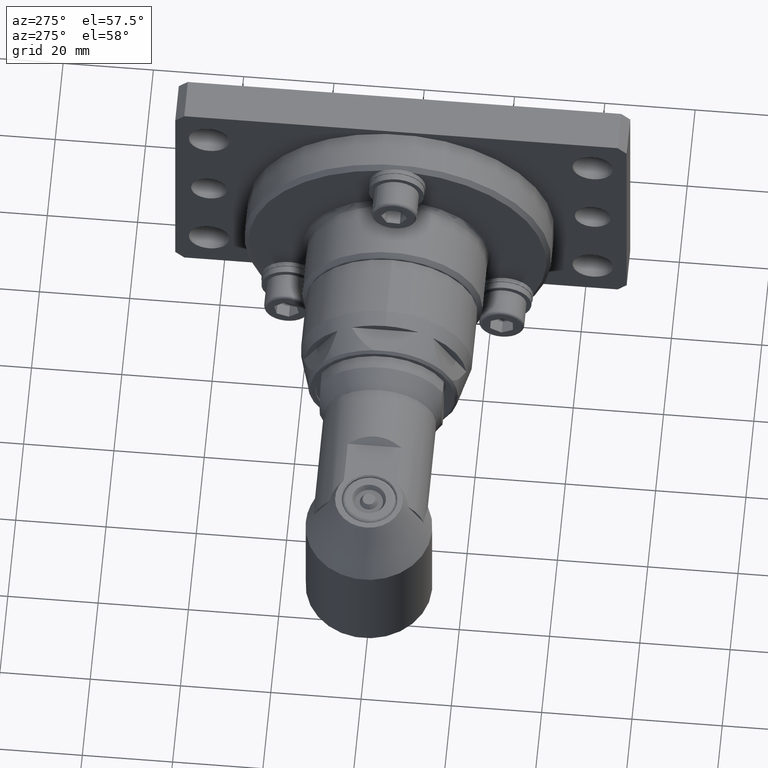
[diagram: clean part render]
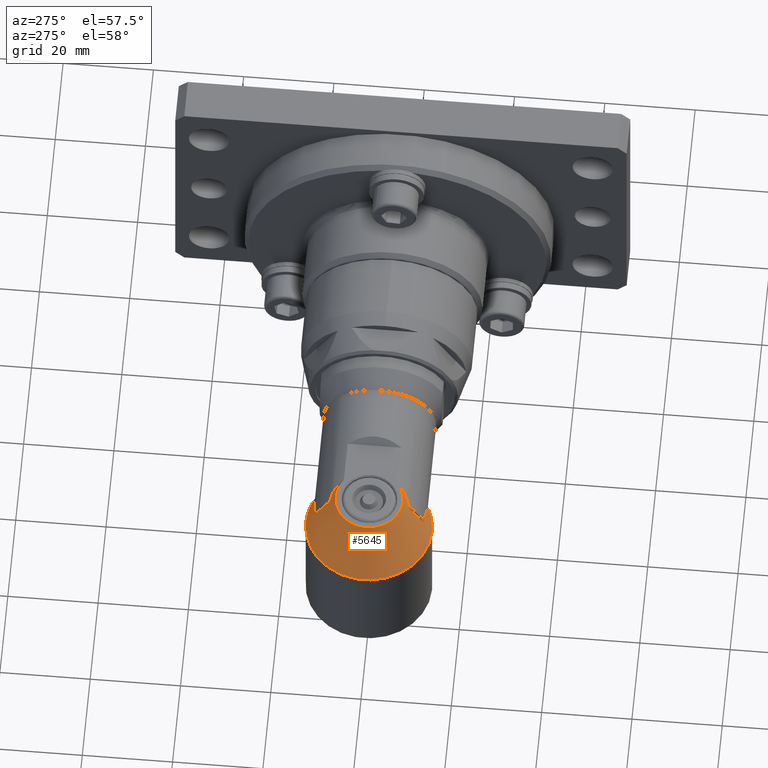
[diagram: same view with one face highlighted and labeled with its STEP entity id]
A machine part, auxiliary view. The second image highlights one B-rep face of the part: STEP entity #5645.
In plain terms, the highlighted conical surface has half-angle 30 deg.
Its self-contained STEP definition (entity closure, byte-faithful):
#130=B_SPLINE_CURVE_WITH_KNOTS('',3,(#9800,#9801,#9802,#9803,#9804,#9805,
#9806,#9807,#9808,#9809),.UNSPECIFIED.,.F.,.F.,(4,2,2,2,4),(1.62314517030159,
1.71362749573417,2.03899380529793,2.20167696007982,2.3643601148617),
 .UNSPECIFIED.);
#131=B_SPLINE_CURVE_WITH_KNOTS('',3,(#9814,#9815,#9816,#9817,#9818,#9819,
#9820,#9821,#9822,#9823),.UNSPECIFIED.,.F.,.F.,(4,2,2,2,4),(2.3643601148617,
2.52704326964358,2.68972642442547,3.01509273398923,3.10557505942181),
 .UNSPECIFIED.);
#132=B_SPLINE_CURVE_WITH_KNOTS('',3,(#9825,#9826,#9827,#9828,#9829,#9830,
#9831,#9832),.UNSPECIFIED.,.F.,.F.,(4,2,2,4),(-0.589387009495322,-0.327086994942436,
-0.163543497471218,0.),.UNSPECIFIED.);
#133=B_SPLINE_CURVE_WITH_KNOTS('',3,(#9835,#9836,#9837,#9838,#9839,#9840,
#9841,#9842),.UNSPECIFIED.,.F.,.F.,(4,2,2,4),(2.44689185306567,2.61043535053689,
2.77397884800811,3.03627886256099),.UNSPECIFIED.);
#208=CONICAL_SURFACE('',#6211,10.75,0.523598775598299);
#351=LINE('',#9791,#692);
#352=LINE('',#9796,#693);
#692=VECTOR('',#7404,10.);
#693=VECTOR('',#7409,10.);
#1199=FACE_OUTER_BOUND('',#1534,.T.);
#1534=EDGE_LOOP('',(#4382,#4383,#4384,#4385,#4386,#4387,#4388,#4389,#4390));
#1973=CIRCLE('',#6212,14.);
#1974=CIRCLE('',#6213,14.);
#1975=CIRCLE('',#6214,7.5);
#2438=VERTEX_POINT('',#9789);
#2439=VERTEX_POINT('',#9790);
#2440=VERTEX_POINT('',#9794);
#2441=VERTEX_POINT('',#9795);
#2442=VERTEX_POINT('',#9799);
#2443=VERTEX_POINT('',#9810);
#2444=VERTEX_POINT('',#9812);
#2445=VERTEX_POINT('',#9824);
#2446=VERTEX_POINT('',#9833);
#3154=EDGE_CURVE('',#2438,#2439,#351,.T.);
#3156=EDGE_CURVE('',#2440,#2441,#352,.T.);
#3158=EDGE_CURVE('',#2442,#2438,#130,.T.);
#3159=EDGE_CURVE('',#2443,#2442,#1973,.T.);
#3160=EDGE_CURVE('',#2444,#2443,#1974,.T.);
#3161=EDGE_CURVE('',#2441,#2444,#131,.T.);
#3162=EDGE_CURVE('',#2445,#2440,#132,.T.);
#3163=EDGE_CURVE('',#2445,#2446,#1975,.T.);
#3164=EDGE_CURVE('',#2439,#2446,#133,.T.);
#4382=ORIENTED_EDGE('',*,*,#3158,.F.);
#4383=ORIENTED_EDGE('',*,*,#3159,.F.);
#4384=ORIENTED_EDGE('',*,*,#3160,.F.);
#4385=ORIENTED_EDGE('',*,*,#3161,.F.);
#4386=ORIENTED_EDGE('',*,*,#3156,.F.);
#4387=ORIENTED_EDGE('',*,*,#3162,.F.);
#4388=ORIENTED_EDGE('',*,*,#3163,.T.);
#4389=ORIENTED_EDGE('',*,*,#3164,.F.);
#4390=ORIENTED_EDGE('',*,*,#3154,.F.);
#5645=ADVANCED_FACE('',(#1199),#208,.T.);
#6211=AXIS2_PLACEMENT_3D('',#9798,#7412,#7413);
#6212=AXIS2_PLACEMENT_3D('',#9811,#7414,#7415);
#6213=AXIS2_PLACEMENT_3D('',#9813,#7416,#7417);
#6214=AXIS2_PLACEMENT_3D('',#9834,#7418,#7419);
#7404=DIRECTION('',(-4.17391412980586E-14,-0.499999999999602,0.866025403784669));
#7409=DIRECTION('',(-4.37269818223513E-14,-0.500000000000399,-0.866025403784209));
#7412=DIRECTION('center_axis',(-1.14768026180642E-15,-4.60119823486233E-13,
-1.));
#7413=DIRECTION('ref_axis',(-1.,8.54661231204104E-14,1.14768026176709E-15));
#7414=DIRECTION('center_axis',(-1.14768026180642E-15,-4.60119823486233E-13,
-1.));
#7415=DIRECTION('ref_axis',(-1.,8.54661231204104E-14,1.14768026176709E-15));
#7416=DIRECTION('center_axis',(-1.14768026180642E-15,-4.60119823486233E-13,
-1.));
#7417=DIRECTION('ref_axis',(-1.,8.54661231204104E-14,1.14768026176709E-15));
#7418=DIRECTION('center_axis',(-1.14768026180642E-15,-4.60119823486233E-13,
-1.));
#7419=DIRECTION('ref_axis',(-1.,8.54661231204104E-14,1.14768026176709E-15));
#9789=CARTESIAN_POINT('',(7.99360577730113E-13,12.1463635538348,2.95226225434325));
#9790=CARTESIAN_POINT('',(5.50670620214078E-13,8.62991588782803,9.04292827403038));
#9791=CARTESIAN_POINT('',(7.105427357601E-13,10.7500000000167,5.37083487539615));
#9794=CARTESIAN_POINT('',(-9.41469124882133E-13,-8.62991588779126,9.04292827403832));
#9795=CARTESIAN_POINT('',(-1.26121335597418E-12,-12.1463635538036,2.95226225435443));
#9796=CARTESIAN_POINT('',(-1.13686837721616E-12,-10.7499999999833,5.37083487540604));
#9798=CARTESIAN_POINT('Origin',(-2.1316282072803E-13,1.66990012425033E-11,
5.3708348754011));
#9799=CARTESIAN_POINT('',(6.3100502785367,12.4973303342229,-0.258330249203509));
#9800=CARTESIAN_POINT('Ctrl Pts',(6.3100502785367,12.4973303342229,-0.258330249203502));
#9801=CARTESIAN_POINT('Ctrl Pts',(6.06206127142074,12.5012082016459,-0.0707293378663077));
#9802=CARTESIAN_POINT('Ctrl Pts',(5.81386995336819,12.5007970376132,0.114424952545421));
#9803=CARTESIAN_POINT('Ctrl Pts',(4.67351319797798,12.4810151885125,0.949327163807642));
#9804=CARTESIAN_POINT('Ctrl Pts',(3.79211619272622,12.4124781501671,1.55957105899495));
#9805=CARTESIAN_POINT('Ctrl Pts',(2.44152719823136,12.2886927982321,2.30242067433886));
#9806=CARTESIAN_POINT('Ctrl Pts',(1.98729350032886,12.2444703235136,2.52004275120872));
#9807=CARTESIAN_POINT('Ctrl Pts',(1.03769170923437,12.1730750556286,2.84498079570993));
#9808=CARTESIAN_POINT('Ctrl Pts',(0.542277182607088,12.1463635538347,2.95226225434326));
#9809=CARTESIAN_POINT('Ctrl Pts',(8.00470800754738E-13,12.1463635538348,
2.95226225434326));
#9810=CARTESIAN_POINT('',(-1.36600352301003E-9,14.0000000000141,-0.258330249204191));
#9811=CARTESIAN_POINT('Origin',(-2.1316282072803E-13,1.4108910778998E-11,
-0.258330249197751));
#9812=CARTESIAN_POINT('',(6.31005027853458,-12.4973303341958,-0.258330249192008));
#9813=CARTESIAN_POINT('Origin',(-2.1316282072803E-13,1.4108910778998E-11,
-0.258330249197751));
#9814=CARTESIAN_POINT('Ctrl Pts',(-1.25968679931532E-12,-12.1463635538036,
2.95226225435444));
#9815=CARTESIAN_POINT('Ctrl Pts',(0.542277182605028,-12.1463635538036,2.95226225435444));
#9816=CARTESIAN_POINT('Ctrl Pts',(1.03769170923231,-12.1730750555977,2.84498079572113));
#9817=CARTESIAN_POINT('Ctrl Pts',(1.98729350032679,-12.2444703234832,2.52004275121999));
#9818=CARTESIAN_POINT('Ctrl Pts',(2.4415271982293,-12.288692798202,2.30242067435017));
#9819=CARTESIAN_POINT('Ctrl Pts',(3.79211619272413,-12.4124781501378,1.55957105900637));
#9820=CARTESIAN_POINT('Ctrl Pts',(4.67351319797588,-12.481015188484,0.949327163819126));
#9821=CARTESIAN_POINT('Ctrl Pts',(5.81386995336606,-12.5007970375857,0.114424952556923));
#9822=CARTESIAN_POINT('Ctrl Pts',(6.06206127141861,-12.5012082016185,-0.070729337854815));
#9823=CARTESIAN_POINT('Ctrl Pts',(6.31005027853458,-12.4973303341958,-0.258330249192012));
#9824=CARTESIAN_POINT('',(4.5825756949551,-5.93717104350007,11.0000000000027));
#9825=CARTESIAN_POINT('Ctrl Pts',(4.58257569495511,-5.93717104350008,11.0000000000027));
#9826=CARTESIAN_POINT('Ctrl Pts',(4.07439865699523,-6.58404586298009,10.6508539593668));
#9827=CARTESIAN_POINT('Ctrl Pts',(3.47237818182018,-7.17304637907812,10.2538499194197));
#9828=CARTESIAN_POINT('Ctrl Pts',(2.39588705774112,-7.92695855345351,9.67197698457824));
#9829=CARTESIAN_POINT('Ctrl Pts',(1.9613651090722,-8.16812103648561,9.46505292971137));
#9830=CARTESIAN_POINT('Ctrl Pts',(1.0355967683997,-8.51875316426397,9.15075297300602));
#9831=CARTESIAN_POINT('Ctrl Pts',(0.545144991569781,-8.62991588779131,9.04292827403831));
#9832=CARTESIAN_POINT('Ctrl Pts',(-9.41469124882133E-13,-8.62991588779126,
9.04292827403831));
#9833=CARTESIAN_POINT('',(4.58257569495613,5.93717104353786,10.9999999999972));
#9834=CARTESIAN_POINT('Origin',(-1.95399252334028E-13,1.92890917060085E-11,
10.9999999999999));
#9835=CARTESIAN_POINT('Ctrl Pts',(5.49074674616179E-13,8.62991588782804,
9.04292827403037));
#9836=CARTESIAN_POINT('Ctrl Pts',(0.545144991571272,8.62991588782799,9.04292827403037));
#9837=CARTESIAN_POINT('Ctrl Pts',(1.03559676840119,8.51875316430067,9.15075297299819));
#9838=CARTESIAN_POINT('Ctrl Pts',(1.9613651090736,8.16812103652244,9.46505292970386));
#9839=CARTESIAN_POINT('Ctrl Pts',(2.39588705774247,7.92695855349045,9.67197698457095));
#9840=CARTESIAN_POINT('Ctrl Pts',(3.47237818182142,7.17304637911542,10.2538499194131));
#9841=CARTESIAN_POINT('Ctrl Pts',(4.07439865699636,6.58404586301765,10.6508539593608));
#9842=CARTESIAN_POINT('Ctrl Pts',(4.58257569495613,5.93717104353786,10.9999999999972));